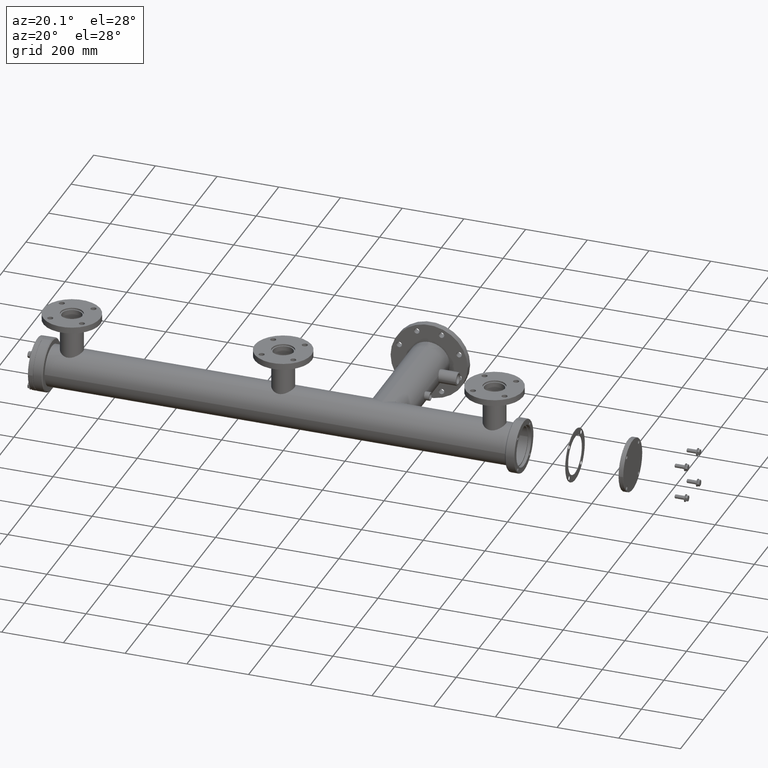
[diagram: clean part render]
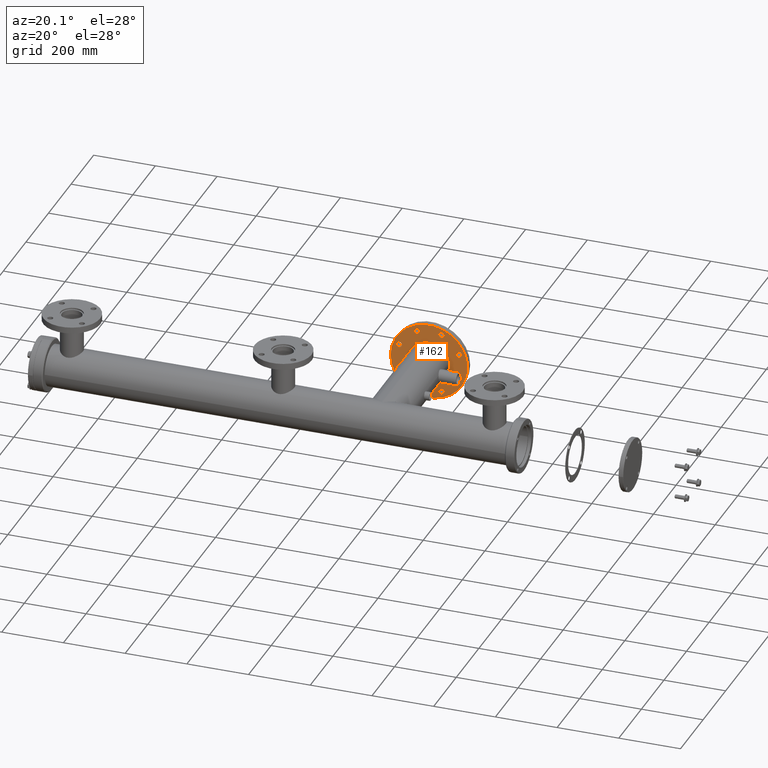
[diagram: same view with one face highlighted and labeled with its STEP entity id]
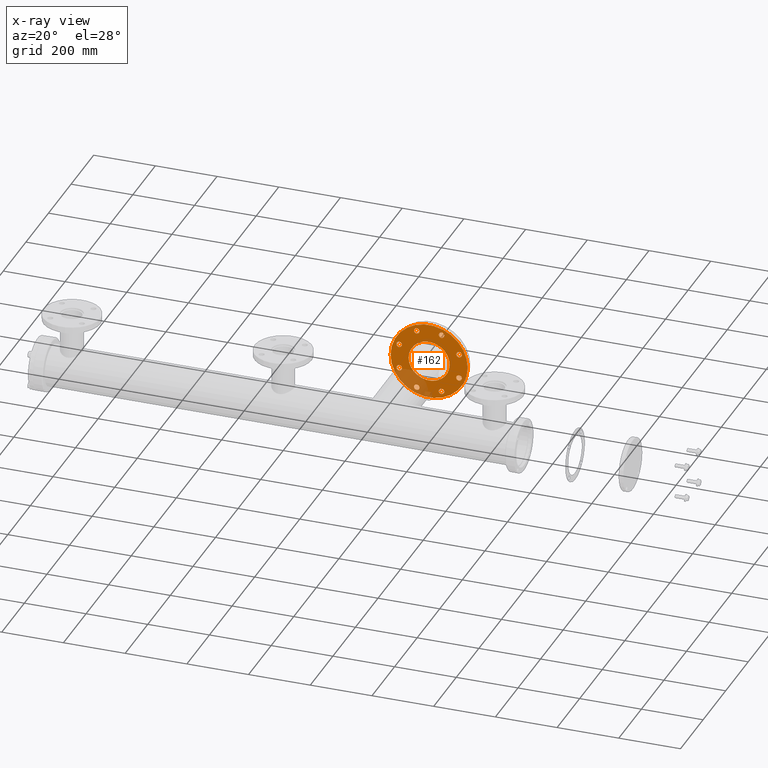
[diagram: x-ray of the same camera — body ghosted, the highlighted face saturated]
A machine part, auxiliary view. The second image highlights one B-rep face of the part: STEP entity #162.
The next image is the same camera in x-ray: the body ghosted, the highlighted face saturated — about 17% of this face is hidden behind the body in this view.
In plain terms, the highlighted planar face has unit normal (0, 1, -0).
Its self-contained STEP definition (entity closure, byte-faithful):
#75 = EDGE_CURVE ( 'NONE', #4523, #287, #1273, .T. ) ;
#162 = ADVANCED_FACE ( 'NONE', ( #1760, #4143, #213, #5784, #3372, #4340, #8934, #5733, #4186, #7373 ), #7324, .F. ) ;
#198 = DIRECTION ( 'NONE',  ( 1.725633230170963324E-31, -3.019858152799185818E-31, -1.000000000000000000 ) ) ;
#213 = FACE_BOUND ( 'NONE', #2830, .T. ) ;
#226 = AXIS2_PLACEMENT_3D ( 'NONE', #2032, #5180, #8320 ) ;
#249 = VERTEX_POINT ( 'NONE', #3618 ) ;
#287 = VERTEX_POINT ( 'NONE', #3676 ) ;
#306 = ORIENTED_EDGE ( 'NONE', *, *, #7290, .T. ) ;
#327 = AXIS2_PLACEMENT_3D ( 'NONE', #8949, #4248, #7335 ) ;
#370 = DIRECTION ( 'NONE',  ( -1.725633230170963324E-31, -3.019858152799185818E-31, -1.000000000000000000 ) ) ;
#466 = CIRCLE ( 'NONE', #2282, 8.999999999999992895 ) ;
#536 = CARTESIAN_POINT ( 'NONE',  ( 0.000000000000000000, 0.000000000000000000, 0.000000000000000000 ) ) ;
#552 = EDGE_LOOP ( 'NONE', ( #2755, #2521 ) ) ;
#572 = CARTESIAN_POINT ( 'NONE',  ( 0.000000000000000000, 0.000000000000000000, 0.000000000000000000 ) ) ;
#600 = EDGE_CURVE ( 'NONE', #905, #7978, #9023, .T. ) ;
#651 = ORIENTED_EDGE ( 'NONE', *, *, #2328, .T. ) ;
#769 = AXIS2_PLACEMENT_3D ( 'NONE', #9805, #3517, #1125 ) ;
#812 = EDGE_CURVE ( 'NONE', #287, #4523, #8363, .T. ) ;
#848 = DIRECTION ( 'NONE',  ( -0.7071067811865467956, -0.7071067811865483499, -8.628166150854814432E-32 ) ) ;
#887 = DIRECTION ( 'NONE',  ( 1.725633230170963324E-31, -3.019858152799185818E-31, -1.000000000000000000 ) ) ;
#905 = VERTEX_POINT ( 'NONE', #3350 ) ;
#941 = CARTESIAN_POINT ( 'NONE',  ( 31.18176039833449309, -97.00735091368505891, -1.540743955509788682E-30 ) ) ;
#951 = EDGE_LOOP ( 'NONE', ( #306, #7732 ) ) ;
#967 = EDGE_LOOP ( 'NONE', ( #2043, #3466 ) ) ;
#1084 = AXIS2_PLACEMENT_3D ( 'NONE', #8793, #3324, #2498 ) ;
#1125 = DIRECTION ( 'NONE',  ( 0.7071067811865513475, -0.7071067811865435759, -3.420451581231729123E-31 ) ) ;
#1273 = CIRCLE ( 'NONE', #8854, 125.0000000000000000 ) ;
#1306 = CIRCLE ( 'NONE', #2127, 8.999999999999996447 ) ;
#1356 = VERTEX_POINT ( 'NONE', #6664 ) ;
#1372 = EDGE_CURVE ( 'NONE', #7995, #9011, #5712, .T. ) ;
#1373 = EDGE_CURVE ( 'NONE', #9626, #6068, #5210, .T. ) ;
#1477 = CARTESIAN_POINT ( 'NONE',  ( 97.00735091368467522, 40.18176039833552693, 0.000000000000000000 ) ) ;
#1490 = DIRECTION ( 'NONE',  ( 1.725633230170963324E-31, -3.019858152799185818E-31, -1.000000000000000000 ) ) ;
#1525 = CARTESIAN_POINT ( 'NONE',  ( 97.00735091368457574, 49.18176039833551982, 2.717872337519265484E-30 ) ) ;
#1541 = ORIENTED_EDGE ( 'NONE', *, *, #1372, .T. ) ;
#1711 = EDGE_CURVE ( 'NONE', #7935, #249, #9166, .T. ) ;
#1720 = CIRCLE ( 'NONE', #4683, 8.999999999999992895 ) ;
#1740 = ORIENTED_EDGE ( 'NONE', *, *, #4174, .T. ) ;
#1760 = FACE_BOUND ( 'NONE', #5327, .T. ) ;
#1862 = CARTESIAN_POINT ( 'NONE',  ( 0.000000000000000000, 66.50000000000000000, 0.000000000000000000 ) ) ;
#1961 = EDGE_CURVE ( 'NONE', #6889, #6320, #9176, .T. ) ;
#1962 = CARTESIAN_POINT ( 'NONE',  ( -97.00735091368508733, -49.18176039833485191, -2.717872337519265484E-30 ) ) ;
#2010 = DIRECTION ( 'NONE',  ( 1.725633230170963324E-31, -3.019858152799185818E-31, -1.000000000000000000 ) ) ;
#2017 = VERTEX_POINT ( 'NONE', #9322 ) ;
#2032 = CARTESIAN_POINT ( 'NONE',  ( -97.00735091368542840, 40.18176039833416979, 0.000000000000000000 ) ) ;
#2043 = ORIENTED_EDGE ( 'NONE', *, *, #10109, .T. ) ;
#2061 = DIRECTION ( 'NONE',  ( 1.000000000000000000, -1.420362989772364204E-32, -1.725633230170963324E-31 ) ) ;
#2111 = ORIENTED_EDGE ( 'NONE', *, *, #2896, .T. ) ;
#2127 = AXIS2_PLACEMENT_3D ( 'NONE', #3728, #8621, #5329 ) ;
#2282 = AXIS2_PLACEMENT_3D ( 'NONE', #5260, #1490, #2843 ) ;
#2328 = EDGE_CURVE ( 'NONE', #9011, #7995, #1306, .T. ) ;
#2412 = DIRECTION ( 'NONE',  ( -1.725633230170963324E-31, 3.019858152799185818E-31, 1.000000000000000000 ) ) ;
#2498 = DIRECTION ( 'NONE',  ( -1.000000000000000000, 0.000000000000000000, 1.725633230170963105E-31 ) ) ;
#2521 = ORIENTED_EDGE ( 'NONE', *, *, #1961, .T. ) ;
#2558 = ORIENTED_EDGE ( 'NONE', *, *, #75, .T. ) ;
#2581 = ORIENTED_EDGE ( 'NONE', *, *, #8267, .F. ) ;
#2600 = AXIS2_PLACEMENT_3D ( 'NONE', #4653, #887, #10170 ) ;
#2636 = EDGE_CURVE ( 'NONE', #7784, #1356, #8565, .T. ) ;
#2755 = ORIENTED_EDGE ( 'NONE', *, *, #8435, .T. ) ;
#2809 = VERTEX_POINT ( 'NONE', #5356 ) ;
#2830 = EDGE_LOOP ( 'NONE', ( #9065, #7145 ) ) ;
#2843 = DIRECTION ( 'NONE',  ( 0.7071067811865409114, 0.7071067811865541231, 8.628166150854817716E-32 ) ) ;
#2846 = CARTESIAN_POINT ( 'NONE',  ( 40.18176039833315372, 97.00735091368561314, 0.000000000000000000 ) ) ;
#2856 = DIRECTION ( 'NONE',  ( 1.725633230170963324E-31, -3.019858152799185818E-31, -1.000000000000000000 ) ) ;
#2896 = EDGE_CURVE ( 'NONE', #6068, #9626, #3966, .T. ) ;
#2897 = EDGE_CURVE ( 'NONE', #6018, #5096, #6579, .T. ) ;
#2987 = CARTESIAN_POINT ( 'NONE',  ( -40.18176039833382163, -97.00735091368534313, 0.000000000000000000 ) ) ;
#3097 = CIRCLE ( 'NONE', #3753, 66.50000000000000000 ) ;
#3251 = CIRCLE ( 'NONE', #9834, 8.999999999999994671 ) ;
#3297 = EDGE_LOOP ( 'NONE', ( #6945, #1740 ) ) ;
#3324 = DIRECTION ( 'NONE',  ( 1.725633230170963324E-31, -3.019858152799185818E-31, -1.000000000000000000 ) ) ;
#3350 = CARTESIAN_POINT ( 'NONE',  ( -97.00735091368514418, -31.18176039833486257, -3.081487911019577365E-30 ) ) ;
#3357 = DIRECTION ( 'NONE',  ( -1.000000000000000000, 0.000000000000000000, 1.725633230170963105E-31 ) ) ;
#3372 = FACE_BOUND ( 'NONE', #6037, .T. ) ;
#3373 = CARTESIAN_POINT ( 'NONE',  ( -31.18176039833449309, 97.00735091368505891, 1.540743955509788682E-30 ) ) ;
#3428 = AXIS2_PLACEMENT_3D ( 'NONE', #9018, #7511, #8338 ) ;
#3466 = ORIENTED_EDGE ( 'NONE', *, *, #2636, .T. ) ;
#3472 = AXIS2_PLACEMENT_3D ( 'NONE', #3605, #6129, #9069 ) ;
#3475 = DIRECTION ( 'NONE',  ( -1.000000000000000000, 1.420362989772364204E-32, 1.725633230170963324E-31 ) ) ;
#3517 = DIRECTION ( 'NONE',  ( 1.725633230170963324E-31, -3.019858152799185818E-31, -1.000000000000000000 ) ) ;
#3605 = CARTESIAN_POINT ( 'NONE',  ( 0.000000000000000000, 0.000000000000000000, 0.000000000000000000 ) ) ;
#3618 = CARTESIAN_POINT ( 'NONE',  ( -49.18176039833448243, 97.00735091368505891, 1.553069907153865941E-30 ) ) ;
#3676 = CARTESIAN_POINT ( 'NONE',  ( -125.0000000000000000, 1.530808498934191561E-14, -2.157041537713704716E-29 ) ) ;
#3682 = CARTESIAN_POINT ( 'NONE',  ( 97.00735091368545682, -40.18176039833348767, 0.000000000000000000 ) ) ;
#3686 = DIRECTION ( 'NONE',  ( -1.725633230170963324E-31, 3.019858152799185818E-31, 1.000000000000000000 ) ) ;
#3703 = DIRECTION ( 'NONE',  ( 1.725633230170963324E-31, -3.019858152799185818E-31, -1.000000000000000000 ) ) ;
#3728 = CARTESIAN_POINT ( 'NONE',  ( 40.18176039833315372, 97.00735091368561314, 0.000000000000000000 ) ) ;
#3753 = AXIS2_PLACEMENT_3D ( 'NONE', #572, #9138, #2061 ) ;
#3823 = ORIENTED_EDGE ( 'NONE', *, *, #7751, .T. ) ;
#3966 = CIRCLE ( 'NONE', #4791, 8.999999999999998224 ) ;
#3981 = EDGE_LOOP ( 'NONE', ( #2558, #9557 ) ) ;
#4143 = FACE_BOUND ( 'NONE', #552, .T. ) ;
#4151 = CARTESIAN_POINT ( 'NONE',  ( 97.00735091368477470, 31.18176039833553403, 3.081487911019577365E-30 ) ) ;
#4174 = EDGE_CURVE ( 'NONE', #8522, #2017, #7153, .T. ) ;
#4186 = FACE_BOUND ( 'NONE', #4446, .T. ) ;
#4248 = DIRECTION ( 'NONE',  ( 1.725633230170963324E-31, -3.019858152799185818E-31, -1.000000000000000000 ) ) ;
#4340 = FACE_BOUND ( 'NONE', #951, .T. ) ;
#4446 = EDGE_LOOP ( 'NONE', ( #2581, #5761 ) ) ;
#4523 = VERTEX_POINT ( 'NONE', #9142 ) ;
#4527 = DIRECTION ( 'NONE',  ( 1.725633230170963324E-31, -3.019858152799185818E-31, -1.000000000000000000 ) ) ;
#4616 = EDGE_CURVE ( 'NONE', #2809, #7337, #1720, .T. ) ;
#4653 = CARTESIAN_POINT ( 'NONE',  ( 97.00735091368467522, 40.18176039833552693, 0.000000000000000000 ) ) ;
#4683 = AXIS2_PLACEMENT_3D ( 'NONE', #3682, #2856, #5274 ) ;
#4724 = AXIS2_PLACEMENT_3D ( 'NONE', #4897, #198, #3357 ) ;
#4781 = CARTESIAN_POINT ( 'NONE',  ( 46.54572142901215415, 90.64338988300677613, 3.081487911019576314E-30 ) ) ;
#4791 = AXIS2_PLACEMENT_3D ( 'NONE', #2987, #4527, #5973 ) ;
#4897 = CARTESIAN_POINT ( 'NONE',  ( -40.18176039833448954, 97.00735091368505891, 0.000000000000000000 ) ) ;
#5059 = DIRECTION ( 'NONE',  ( -0.7071067811865561215, 0.7071067811865391350, 3.482081339452121109E-31 ) ) ;
#5096 = VERTEX_POINT ( 'NONE', #8074 ) ;
#5180 = DIRECTION ( 'NONE',  ( 1.725633230170963324E-31, -3.019858152799185818E-31, -1.000000000000000000 ) ) ;
#5210 = CIRCLE ( 'NONE', #769, 8.999999999999998224 ) ;
#5232 = AXIS2_PLACEMENT_3D ( 'NONE', #1862, #370, #3475 ) ;
#5251 = CIRCLE ( 'NONE', #9033, 8.999999999999994671 ) ;
#5260 = CARTESIAN_POINT ( 'NONE',  ( 97.00735091368545682, -40.18176039833348767, 0.000000000000000000 ) ) ;
#5274 = DIRECTION ( 'NONE',  ( 0.7071067811865409114, 0.7071067811865541231, 8.628166150854817716E-32 ) ) ;
#5317 = DIRECTION ( 'NONE',  ( 1.725633230170963324E-31, -3.019858152799185818E-31, -1.000000000000000000 ) ) ;
#5327 = EDGE_LOOP ( 'NONE', ( #1541, #651 ) ) ;
#5329 = DIRECTION ( 'NONE',  ( -0.7071067811865561215, 0.7071067811865391350, 3.482081339452121109E-31 ) ) ;
#5356 = CARTESIAN_POINT ( 'NONE',  ( 103.3713119443643222, -33.81779936765450856, 7.765349535769329705E-31 ) ) ;
#5550 = CIRCLE ( 'NONE', #1084, 8.999999999999994671 ) ;
#5557 = DIRECTION ( 'NONE',  ( 1.000000000000000000, -1.420362989772364204E-32, -1.725633230170963324E-31 ) ) ;
#5712 = CIRCLE ( 'NONE', #6857, 8.999999999999996447 ) ;
#5725 = CIRCLE ( 'NONE', #2600, 8.999999999999994671 ) ;
#5733 = FACE_BOUND ( 'NONE', #9852, .T. ) ;
#5761 = ORIENTED_EDGE ( 'NONE', *, *, #2897, .F. ) ;
#5784 = FACE_BOUND ( 'NONE', #967, .T. ) ;
#5973 = DIRECTION ( 'NONE',  ( 0.7071067811865513475, -0.7071067811865435759, -3.420451581231729123E-31 ) ) ;
#6018 = VERTEX_POINT ( 'NONE', #8258 ) ;
#6037 = EDGE_LOOP ( 'NONE', ( #6575, #2111 ) ) ;
#6061 = CARTESIAN_POINT ( 'NONE',  ( -97.00735091368511576, -40.18176039833485191, 0.000000000000000000 ) ) ;
#6068 = VERTEX_POINT ( 'NONE', #7369 ) ;
#6129 = DIRECTION ( 'NONE',  ( -1.725633230170963324E-31, 3.019858152799185818E-31, 1.000000000000000000 ) ) ;
#6182 = DIRECTION ( 'NONE',  ( 1.000000000000000000, 0.000000000000000000, -1.725633230170963105E-31 ) ) ;
#6241 = CARTESIAN_POINT ( 'NONE',  ( -90.64338988300650612, 46.54572142901309917, -1.540743955509787106E-30 ) ) ;
#6320 = VERTEX_POINT ( 'NONE', #1525 ) ;
#6575 = ORIENTED_EDGE ( 'NONE', *, *, #1373, .T. ) ;
#6579 = CIRCLE ( 'NONE', #3472, 66.50000000000000000 ) ;
#6664 = CARTESIAN_POINT ( 'NONE',  ( 49.18176039833448243, -97.00735091368505891, -1.553069907153865941E-30 ) ) ;
#6821 = DIRECTION ( 'NONE',  ( 1.000000000000000000, -1.420362989772364204E-32, -1.725633230170963324E-31 ) ) ;
#6849 = CARTESIAN_POINT ( 'NONE',  ( 40.18176039833448954, -97.00735091368505891, 0.000000000000000000 ) ) ;
#6857 = AXIS2_PLACEMENT_3D ( 'NONE', #2846, #2010, #5059 ) ;
#6863 = CIRCLE ( 'NONE', #8174, 8.999999999999996447 ) ;
#6889 = VERTEX_POINT ( 'NONE', #4151 ) ;
#6945 = ORIENTED_EDGE ( 'NONE', *, *, #7772, .T. ) ;
#7036 = DIRECTION ( 'NONE',  ( 1.725633230170963324E-31, -3.019858152799185818E-31, -1.000000000000000000 ) ) ;
#7145 = ORIENTED_EDGE ( 'NONE', *, *, #10088, .T. ) ;
#7153 = CIRCLE ( 'NONE', #226, 8.999999999999996447 ) ;
#7290 = EDGE_CURVE ( 'NONE', #7978, #905, #3251, .T. ) ;
#7324 = PLANE ( 'NONE',  #5232 ) ;
#7335 = DIRECTION ( 'NONE',  ( 1.000000000000000000, 0.000000000000000000, -1.725633230170963105E-31 ) ) ;
#7337 = VERTEX_POINT ( 'NONE', #10094 ) ;
#7369 = CARTESIAN_POINT ( 'NONE',  ( -46.54572142901277942, -90.64338988300644928, -3.081487911019576314E-30 ) ) ;
#7373 = FACE_OUTER_BOUND ( 'NONE', #3981, .T. ) ;
#7511 = DIRECTION ( 'NONE',  ( 1.725633230170963324E-31, -3.019858152799185818E-31, -1.000000000000000000 ) ) ;
#7639 = CARTESIAN_POINT ( 'NONE',  ( -33.81779936765486383, -103.3713119443642370, -3.078406423108555686E-30 ) ) ;
#7732 = ORIENTED_EDGE ( 'NONE', *, *, #600, .T. ) ;
#7751 = EDGE_CURVE ( 'NONE', #249, #7935, #5550, .T. ) ;
#7772 = EDGE_CURVE ( 'NONE', #2017, #8522, #6863, .T. ) ;
#7784 = VERTEX_POINT ( 'NONE', #941 ) ;
#7824 = CARTESIAN_POINT ( 'NONE',  ( 0.000000000000000000, 0.000000000000000000, 0.000000000000000000 ) ) ;
#7935 = VERTEX_POINT ( 'NONE', #3373 ) ;
#7964 = DIRECTION ( 'NONE',  ( 1.725633230170963324E-31, -3.019858152799185818E-31, -1.000000000000000000 ) ) ;
#7978 = VERTEX_POINT ( 'NONE', #1962 ) ;
#7995 = VERTEX_POINT ( 'NONE', #9863 ) ;
#8074 = CARTESIAN_POINT ( 'NONE',  ( 66.50000000000000000, -9.445413881986222710E-31, -1.147546098063690611E-29 ) ) ;
#8130 = ORIENTED_EDGE ( 'NONE', *, *, #1711, .T. ) ;
#8174 = AXIS2_PLACEMENT_3D ( 'NONE', #9614, #7964, #848 ) ;
#8258 = CARTESIAN_POINT ( 'NONE',  ( -66.50000000000000000, 8.143901214329898396E-15, -1.147546098063690891E-29 ) ) ;
#8267 = EDGE_CURVE ( 'NONE', #5096, #6018, #3097, .T. ) ;
#8320 = DIRECTION ( 'NONE',  ( -0.7071067811865467956, -0.7071067811865483499, -8.628166150854814432E-32 ) ) ;
#8338 = DIRECTION ( 'NONE',  ( 3.083952846180992055E-15, -1.000000000000000000, -3.019858152799185818E-31 ) ) ;
#8363 = CIRCLE ( 'NONE', #10187, 125.0000000000000000 ) ;
#8435 = EDGE_CURVE ( 'NONE', #6320, #6889, #5725, .T. ) ;
#8522 = VERTEX_POINT ( 'NONE', #6241 ) ;
#8565 = CIRCLE ( 'NONE', #327, 8.999999999999994671 ) ;
#8593 = DIRECTION ( 'NONE',  ( 3.083952846180992055E-15, -1.000000000000000000, -3.019858152799185818E-31 ) ) ;
#8621 = DIRECTION ( 'NONE',  ( 1.725633230170963324E-31, -3.019858152799185818E-31, -1.000000000000000000 ) ) ;
#8793 = CARTESIAN_POINT ( 'NONE',  ( -40.18176039833448954, 97.00735091368505891, 0.000000000000000000 ) ) ;
#8854 = AXIS2_PLACEMENT_3D ( 'NONE', #536, #3686, #6821 ) ;
#8934 = FACE_BOUND ( 'NONE', #3297, .T. ) ;
#8949 = CARTESIAN_POINT ( 'NONE',  ( 40.18176039833448954, -97.00735091368505891, 0.000000000000000000 ) ) ;
#9011 = VERTEX_POINT ( 'NONE', #4781 ) ;
#9018 = CARTESIAN_POINT ( 'NONE',  ( -97.00735091368511576, -40.18176039833485191, 0.000000000000000000 ) ) ;
#9023 = CIRCLE ( 'NONE', #3428, 8.999999999999994671 ) ;
#9033 = AXIS2_PLACEMENT_3D ( 'NONE', #6849, #5317, #6182 ) ;
#9065 = ORIENTED_EDGE ( 'NONE', *, *, #4616, .T. ) ;
#9069 = DIRECTION ( 'NONE',  ( 1.000000000000000000, -1.420362989772364204E-32, -1.725633230170963324E-31 ) ) ;
#9138 = DIRECTION ( 'NONE',  ( -1.725633230170963324E-31, 3.019858152799185818E-31, 1.000000000000000000 ) ) ;
#9142 = CARTESIAN_POINT ( 'NONE',  ( 125.0000000000000000, -1.775453737215455165E-30, -2.157041537713704155E-29 ) ) ;
#9166 = CIRCLE ( 'NONE', #4724, 8.999999999999994671 ) ;
#9176 = CIRCLE ( 'NONE', #9512, 8.999999999999994671 ) ;
#9322 = CARTESIAN_POINT ( 'NONE',  ( -103.3713119443643507, 33.81779936765523331, -7.765349535769329705E-31 ) ) ;
#9512 = AXIS2_PLACEMENT_3D ( 'NONE', #1477, #3703, #9993 ) ;
#9557 = ORIENTED_EDGE ( 'NONE', *, *, #812, .T. ) ;
#9614 = CARTESIAN_POINT ( 'NONE',  ( -97.00735091368542840, 40.18176039833416979, 0.000000000000000000 ) ) ;
#9626 = VERTEX_POINT ( 'NONE', #7639 ) ;
#9805 = CARTESIAN_POINT ( 'NONE',  ( -40.18176039833382163, -97.00735091368534313, 0.000000000000000000 ) ) ;
#9834 = AXIS2_PLACEMENT_3D ( 'NONE', #6061, #7036, #8593 ) ;
#9852 = EDGE_LOOP ( 'NONE', ( #3823, #8130 ) ) ;
#9863 = CARTESIAN_POINT ( 'NONE',  ( 33.81779936765415329, 103.3713119443644644, 3.133873205506907728E-30 ) ) ;
#9993 = DIRECTION ( 'NONE',  ( -1.079383496163347338E-14, 1.000000000000000000, 3.019858152799185818E-31 ) ) ;
#10088 = EDGE_CURVE ( 'NONE', #7337, #2809, #466, .T. ) ;
#10094 = CARTESIAN_POINT ( 'NONE',  ( 90.64338988300659139, -46.54572142901246679, 1.540743955509789033E-30 ) ) ;
#10109 = EDGE_CURVE ( 'NONE', #1356, #7784, #5251, .T. ) ;
#10170 = DIRECTION ( 'NONE',  ( -1.079383496163347338E-14, 1.000000000000000000, 3.019858152799185818E-31 ) ) ;
#10187 = AXIS2_PLACEMENT_3D ( 'NONE', #7824, #2412, #5557 ) ;